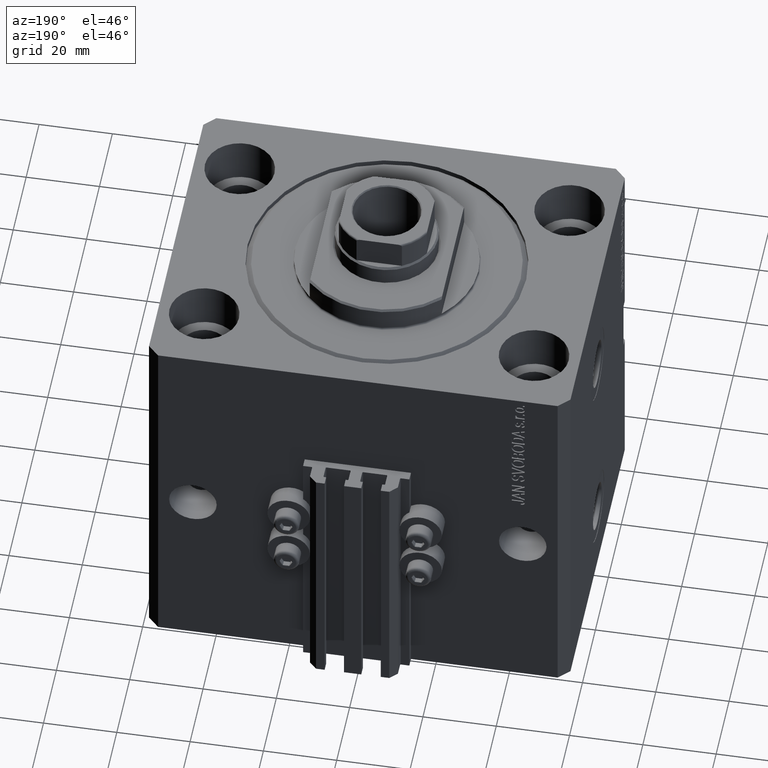
[diagram: clean part render]
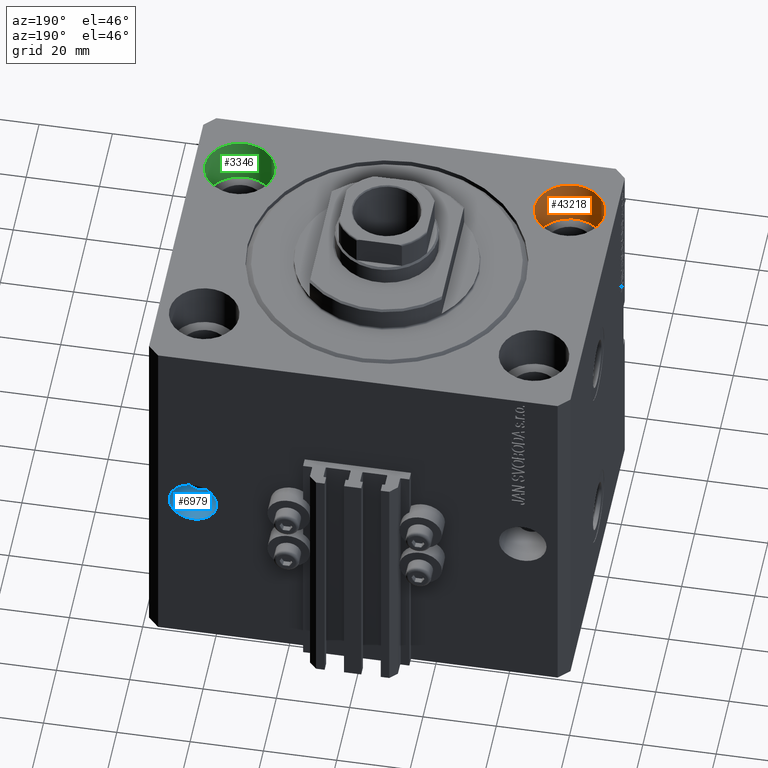
[diagram: same view with three faces highlighted in distinct colors, each labeled with its STEP entity id]
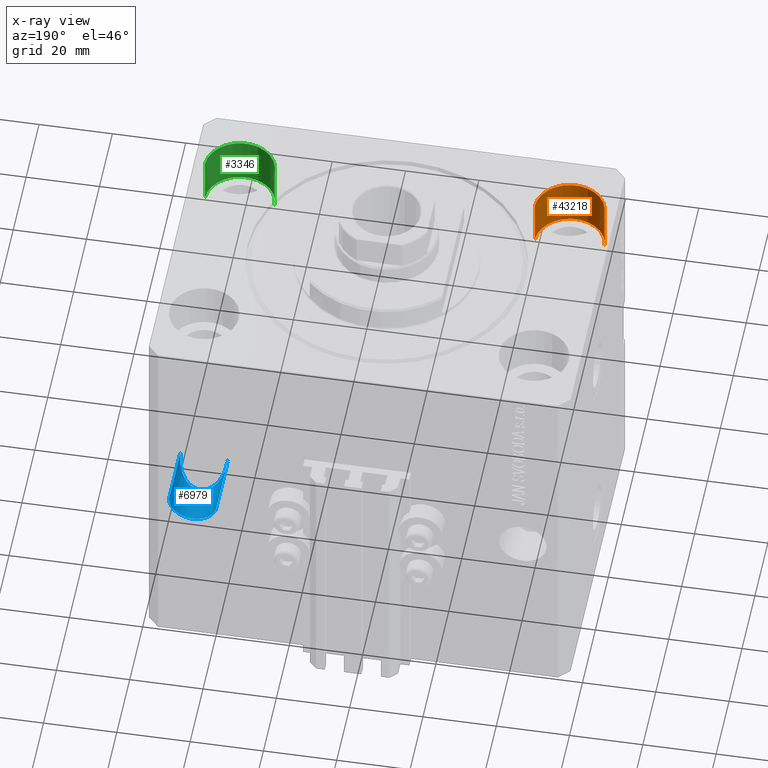
[diagram: x-ray of the same camera — body ghosted, the three highlighted faces saturated]
A machine part, auxiliary view with three faces highlighted in distinct colors.
The next image is the same camera in x-ray (body ghosted, the three faces saturated) — at least one of them is partly hidden behind the body in this view.
Their STEP definitions:

[orange] entity #43218 — the highlighted cylindrical surface (edge-blend (fillet) strip) has radius 9.5 mm, axis along (0, 0, 1).
#1506 = EDGE_CURVE ( 'NONE', #27020, #24910, #26490, .T. ) ;
#3223 = CARTESIAN_POINT ( 'NONE',  ( -54.50000000000000000, -27.49999999999999645, -13.00000000000000000 ) ) ;
#3301 = EDGE_CURVE ( 'NONE', #24910, #40958, #27400, .T. ) ;
#3497 = EDGE_LOOP ( 'NONE', ( #12939, #11063, #5405, #34351 ) ) ;
#4908 = VECTOR ( 'NONE', #6164, 1000.000000000000000 ) ;
#5405 = ORIENTED_EDGE ( 'NONE', *, *, #3301, .T. ) ;
#5955 = AXIS2_PLACEMENT_3D ( 'NONE', #12148, #19613, #31329 ) ;
#6164 = DIRECTION ( 'NONE',  ( -0.000000000000000000, -0.000000000000000000, 1.000000000000000000 ) ) ;
#7488 = CARTESIAN_POINT ( 'NONE',  ( -54.50000000000000000, -27.49999999999999645, 0.000000000000000000 ) ) ;
#7534 = CARTESIAN_POINT ( 'NONE',  ( -35.50000000000000000, -27.49999999999999645, 0.000000000000000000 ) ) ;
#10993 = FACE_OUTER_BOUND ( 'NONE', #3497, .T. ) ;
#11063 = ORIENTED_EDGE ( 'NONE', *, *, #1506, .T. ) ;
#11302 = LINE ( 'NONE', #40741, #4908 ) ;
#11425 = CARTESIAN_POINT ( 'NONE',  ( -35.50000000000000000, -27.49999999999999645, -13.00000000000000000 ) ) ;
#12148 = CARTESIAN_POINT ( 'NONE',  ( -45.00000000000000000, -27.49999999999999645, 0.000000000000000000 ) ) ;
#12939 = ORIENTED_EDGE ( 'NONE', *, *, #38699, .F. ) ;
#17039 = EDGE_CURVE ( 'NONE', #31667, #40958, #11302, .T. ) ;
#19613 = DIRECTION ( 'NONE',  ( 0.000000000000000000, 0.000000000000000000, 1.000000000000000000 ) ) ;
#22408 = DIRECTION ( 'NONE',  ( 1.000000000000000000, 0.000000000000000000, 0.000000000000000000 ) ) ;
#22655 = CYLINDRICAL_SURFACE ( 'NONE', #40187, 9.500000000000001776 ) ;
#22755 = CARTESIAN_POINT ( 'NONE',  ( -54.50000000000000000, -27.49999999999999645, -13.00000000000000000 ) ) ;
#24910 = VERTEX_POINT ( 'NONE', #7488 ) ;
#26151 = DIRECTION ( 'NONE',  ( -0.000000000000000000, -0.000000000000000000, 1.000000000000000000 ) ) ;
#26490 = LINE ( 'NONE', #22755, #40106 ) ;
#27020 = VERTEX_POINT ( 'NONE', #3223 ) ;
#27400 = CIRCLE ( 'NONE', #5955, 9.500000000000001776 ) ;
#29669 = DIRECTION ( 'NONE',  ( 1.000000000000000000, 0.000000000000000000, 0.000000000000000000 ) ) ;
#31329 = DIRECTION ( 'NONE',  ( 1.000000000000000000, 0.000000000000000000, 0.000000000000000000 ) ) ;
#31667 = VERTEX_POINT ( 'NONE', #11425 ) ;
#32924 = CARTESIAN_POINT ( 'NONE',  ( -45.00000000000000000, -27.49999999999999645, -13.00000000000000000 ) ) ;
#34351 = ORIENTED_EDGE ( 'NONE', *, *, #17039, .F. ) ;
#34502 = CIRCLE ( 'NONE', #44015, 9.500000000000001776 ) ;
#37956 = DIRECTION ( 'NONE',  ( -0.000000000000000000, -0.000000000000000000, 1.000000000000000000 ) ) ;
#38699 = EDGE_CURVE ( 'NONE', #27020, #31667, #34502, .T. ) ;
#40106 = VECTOR ( 'NONE', #37956, 1000.000000000000000 ) ;
#40187 = AXIS2_PLACEMENT_3D ( 'NONE', #45549, #26151, #22408 ) ;
#40741 = CARTESIAN_POINT ( 'NONE',  ( -35.50000000000000000, -27.49999999999999645, -13.00000000000000000 ) ) ;
#40958 = VERTEX_POINT ( 'NONE', #7534 ) ;
#43218 = ADVANCED_FACE ( 'NONE', ( #10993 ), #22655, .F. ) ;
#44015 = AXIS2_PLACEMENT_3D ( 'NONE', #32924, #48091, #29669 ) ;
#45549 = CARTESIAN_POINT ( 'NONE',  ( -45.00000000000000000, -27.49999999999999645, -13.00000000000000000 ) ) ;
#48091 = DIRECTION ( 'NONE',  ( 0.000000000000000000, 0.000000000000000000, 1.000000000000000000 ) ) ;

[blue] entity #6979 — the highlighted cylindrical surface (edge-blend (fillet) strip) has radius 6.5 mm, axis along (0, -1, 0).
#123 = CARTESIAN_POINT ( 'NONE',  ( 51.50000000000000000, 40.50000000000001421, -68.00000000000000000 ) ) ;
#793 = DIRECTION ( 'NONE',  ( 1.101411730780568590E-16, -1.000000000000000000, -0.000000000000000000 ) ) ;
#1821 = CARTESIAN_POINT ( 'NONE',  ( 51.50000000000000711, 45.00000000000002842, -55.00000000000000000 ) ) ;
#2088 = LINE ( 'NONE', #13752, #20331 ) ;
#4723 = ORIENTED_EDGE ( 'NONE', *, *, #8517, .F. ) ;
#4743 = EDGE_CURVE ( 'NONE', #45753, #5351, #20301, .T. ) ;
#5351 = VERTEX_POINT ( 'NONE', #18043 ) ;
#5712 = EDGE_CURVE ( 'NONE', #45753, #48917, #2088, .T. ) ;
#6550 = DIRECTION ( 'NONE',  ( 1.101411730780568590E-16, -1.000000000000000000, -0.000000000000000000 ) ) ;
#6979 = ADVANCED_FACE ( 'NONE', ( #19696 ), #34884, .F. ) ;
#8517 = EDGE_CURVE ( 'NONE', #48917, #40726, #31856, .T. ) ;
#8709 = DIRECTION ( 'NONE',  ( 1.101411730780568590E-16, -1.000000000000000000, -0.000000000000000000 ) ) ;
#8958 = LINE ( 'NONE', #24118, #46903 ) ;
#10163 = CARTESIAN_POINT ( 'NONE',  ( 51.50000000000000000, 27.50000000000001776, -55.00000000000000000 ) ) ;
#11065 = DIRECTION ( 'NONE',  ( -2.546383084002639322E-16, 1.000000000000000000, 0.000000000000000000 ) ) ;
#11319 = CARTESIAN_POINT ( 'NONE',  ( 38.50000000000000000, 27.50000000000001776, -55.00000000000000000 ) ) ;
#13752 = CARTESIAN_POINT ( 'NONE',  ( 51.50000000000000711, 53.00000000000003553, -55.00000000000000000 ) ) ;
#14579 = EDGE_LOOP ( 'NONE', ( #33301, #41139, #4723, #19569 ) ) ;
#18043 = CARTESIAN_POINT ( 'NONE',  ( 38.50000000000000711, 45.00000000000002842, -55.00000000000000000 ) ) ;
#19569 = ORIENTED_EDGE ( 'NONE', *, *, #5712, .F. ) ;
#19696 = FACE_OUTER_BOUND ( 'NONE', #14579, .T. ) ;
#20301 = CIRCLE ( 'NONE', #46545, 6.499999999999999112 ) ;
#20331 = VECTOR ( 'NONE', #6550, 1000.000000000000000 ) ;
#22018 = CARTESIAN_POINT ( 'NONE',  ( 38.49999999999999289, 40.50000000000001421, -68.00000000000000000 ) ) ;
#22499 = CARTESIAN_POINT ( 'NONE',  ( 51.50000000000000000, 27.50000000000001776, -55.00000000000000000 ) ) ;
#24118 = CARTESIAN_POINT ( 'NONE',  ( 38.50000000000000711, 53.00000000000003553, -55.00000000000000000 ) ) ;
#25113 = EDGE_CURVE ( 'NONE', #5351, #40726, #8958, .T. ) ;
#29478 = CARTESIAN_POINT ( 'NONE',  ( 45.00000000000000711, 45.00000000000002842, -55.00000000000000000 ) ) ;
#31856 =( BOUNDED_CURVE ( )  B_SPLINE_CURVE ( 3, ( #22499, #123, #22018, #48888 ),
 .UNSPECIFIED., .F., .F. ) 
 B_SPLINE_CURVE_WITH_KNOTS ( ( 4, 4 ),
 ( 1.570796326794896558, 4.712388980384689674 ),
 .UNSPECIFIED. ) 
 CURVE ( )  GEOMETRIC_REPRESENTATION_ITEM ( )  RATIONAL_B_SPLINE_CURVE ( ( 1.000000000000000000, 0.3333333333333333703, 0.3333333333333333703, 1.000000000000000000 ) ) 
 REPRESENTATION_ITEM ( '' )  );
#33301 = ORIENTED_EDGE ( 'NONE', *, *, #4743, .T. ) ;
#34884 = CYLINDRICAL_SURFACE ( 'NONE', #49005, 6.499999999999999112 ) ;
#35132 = DIRECTION ( 'NONE',  ( 1.000000000000000000, 0.000000000000000000, 0.000000000000000000 ) ) ;
#35384 = CARTESIAN_POINT ( 'NONE',  ( 45.00000000000000711, 53.00000000000003553, -55.00000000000000000 ) ) ;
#40726 = VERTEX_POINT ( 'NONE', #11319 ) ;
#41139 = ORIENTED_EDGE ( 'NONE', *, *, #25113, .T. ) ;
#41912 = DIRECTION ( 'NONE',  ( -1.000000000000000000, 0.000000000000000000, 0.000000000000000000 ) ) ;
#45753 = VERTEX_POINT ( 'NONE', #1821 ) ;
#46545 = AXIS2_PLACEMENT_3D ( 'NONE', #29478, #11065, #41912 ) ;
#46903 = VECTOR ( 'NONE', #8709, 1000.000000000000000 ) ;
#48888 = CARTESIAN_POINT ( 'NONE',  ( 38.50000000000000000, 27.50000000000001776, -55.00000000000000000 ) ) ;
#48917 = VERTEX_POINT ( 'NONE', #10163 ) ;
#49005 = AXIS2_PLACEMENT_3D ( 'NONE', #35384, #793, #35132 ) ;

[green] entity #3346 — the highlighted cylindrical surface (edge-blend (fillet) strip) has radius 9.5 mm, axis along (0, 0, 1).
#1469 = DIRECTION ( 'NONE',  ( 1.000000000000000000, 0.000000000000000000, 0.000000000000000000 ) ) ;
#3346 = ADVANCED_FACE ( 'NONE', ( #30583 ), #19856, .F. ) ;
#5842 = CIRCLE ( 'NONE', #41601, 9.500000000000001776 ) ;
#6377 = LINE ( 'NONE', #17812, #8511 ) ;
#8511 = VECTOR ( 'NONE', #25271, 1000.000000000000000 ) ;
#11407 = EDGE_CURVE ( 'NONE', #45156, #20323, #6377, .T. ) ;
#11904 = VERTEX_POINT ( 'NONE', #24428 ) ;
#15409 = ORIENTED_EDGE ( 'NONE', *, *, #11407, .T. ) ;
#17035 = EDGE_CURVE ( 'NONE', #11904, #26190, #43740, .T. ) ;
#17812 = CARTESIAN_POINT ( 'NONE',  ( 35.50000000000000000, -27.49999999999999645, -13.00000000000000000 ) ) ;
#18666 = AXIS2_PLACEMENT_3D ( 'NONE', #20360, #35560, #1469 ) ;
#19856 = CYLINDRICAL_SURFACE ( 'NONE', #18666, 9.500000000000001776 ) ;
#20323 = VERTEX_POINT ( 'NONE', #34610 ) ;
#20360 = CARTESIAN_POINT ( 'NONE',  ( 45.00000000000000000, -27.49999999999999645, -13.00000000000000000 ) ) ;
#20498 = CARTESIAN_POINT ( 'NONE',  ( 45.00000000000000000, -27.49999999999999645, 0.000000000000000000 ) ) ;
#20743 = DIRECTION ( 'NONE',  ( 0.000000000000000000, 0.000000000000000000, 1.000000000000000000 ) ) ;
#21681 = ORIENTED_EDGE ( 'NONE', *, *, #17035, .F. ) ;
#24428 = CARTESIAN_POINT ( 'NONE',  ( 54.50000000000000000, -27.49999999999999645, -13.00000000000000000 ) ) ;
#24436 = AXIS2_PLACEMENT_3D ( 'NONE', #43001, #47471, #28079 ) ;
#24909 = ORIENTED_EDGE ( 'NONE', *, *, #47539, .F. ) ;
#25098 = CARTESIAN_POINT ( 'NONE',  ( 35.50000000000000000, -27.49999999999999645, -13.00000000000000000 ) ) ;
#25271 = DIRECTION ( 'NONE',  ( -0.000000000000000000, -0.000000000000000000, 1.000000000000000000 ) ) ;
#26190 = VERTEX_POINT ( 'NONE', #38037 ) ;
#27964 = ORIENTED_EDGE ( 'NONE', *, *, #37670, .T. ) ;
#28079 = DIRECTION ( 'NONE',  ( 1.000000000000000000, 0.000000000000000000, 0.000000000000000000 ) ) ;
#28801 = DIRECTION ( 'NONE',  ( -0.000000000000000000, -0.000000000000000000, 1.000000000000000000 ) ) ;
#30300 = EDGE_LOOP ( 'NONE', ( #24909, #15409, #27964, #21681 ) ) ;
#30583 = FACE_OUTER_BOUND ( 'NONE', #30300, .T. ) ;
#34610 = CARTESIAN_POINT ( 'NONE',  ( 35.50000000000000000, -27.49999999999999645, 0.000000000000000000 ) ) ;
#35560 = DIRECTION ( 'NONE',  ( -0.000000000000000000, -0.000000000000000000, 1.000000000000000000 ) ) ;
#36279 = CARTESIAN_POINT ( 'NONE',  ( 54.50000000000000000, -27.49999999999999645, -13.00000000000000000 ) ) ;
#36694 = VECTOR ( 'NONE', #28801, 1000.000000000000000 ) ;
#37670 = EDGE_CURVE ( 'NONE', #20323, #26190, #5842, .T. ) ;
#38037 = CARTESIAN_POINT ( 'NONE',  ( 54.50000000000000000, -27.49999999999999645, 0.000000000000000000 ) ) ;
#39564 = CIRCLE ( 'NONE', #24436, 9.500000000000001776 ) ;
#40395 = DIRECTION ( 'NONE',  ( 1.000000000000000000, 0.000000000000000000, 0.000000000000000000 ) ) ;
#41601 = AXIS2_PLACEMENT_3D ( 'NONE', #20498, #20743, #40395 ) ;
#43001 = CARTESIAN_POINT ( 'NONE',  ( 45.00000000000000000, -27.49999999999999645, -13.00000000000000000 ) ) ;
#43740 = LINE ( 'NONE', #36279, #36694 ) ;
#45156 = VERTEX_POINT ( 'NONE', #25098 ) ;
#47471 = DIRECTION ( 'NONE',  ( 0.000000000000000000, 0.000000000000000000, 1.000000000000000000 ) ) ;
#47539 = EDGE_CURVE ( 'NONE', #45156, #11904, #39564, .T. ) ;